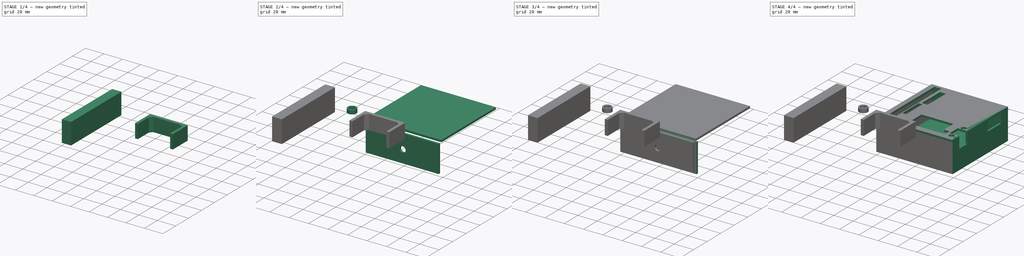
[diagram: build sequence overview — one tinted view per stage of 4, left to right]
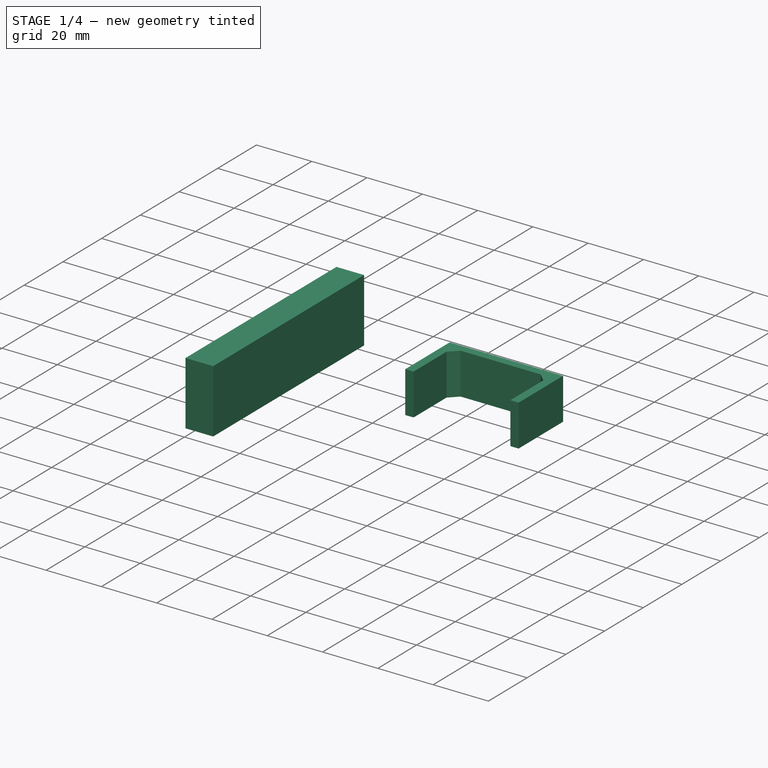
[diagram: stage 1 of 4 — iso view after this stage's code; geometry added in this stage tinted green]
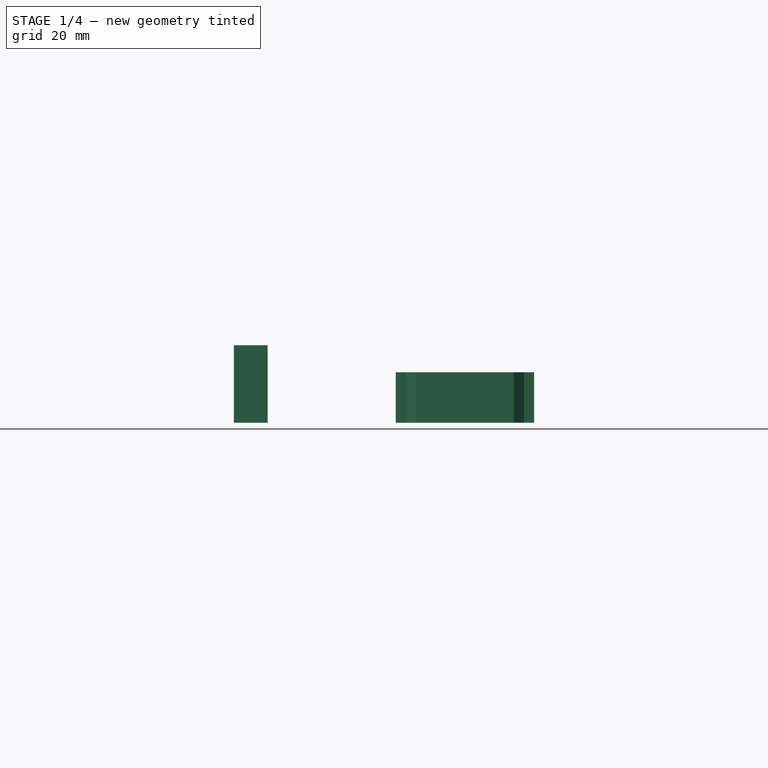
[diagram: stage 1 of 4 — front view after this stage's code; geometry added in this stage tinted green]
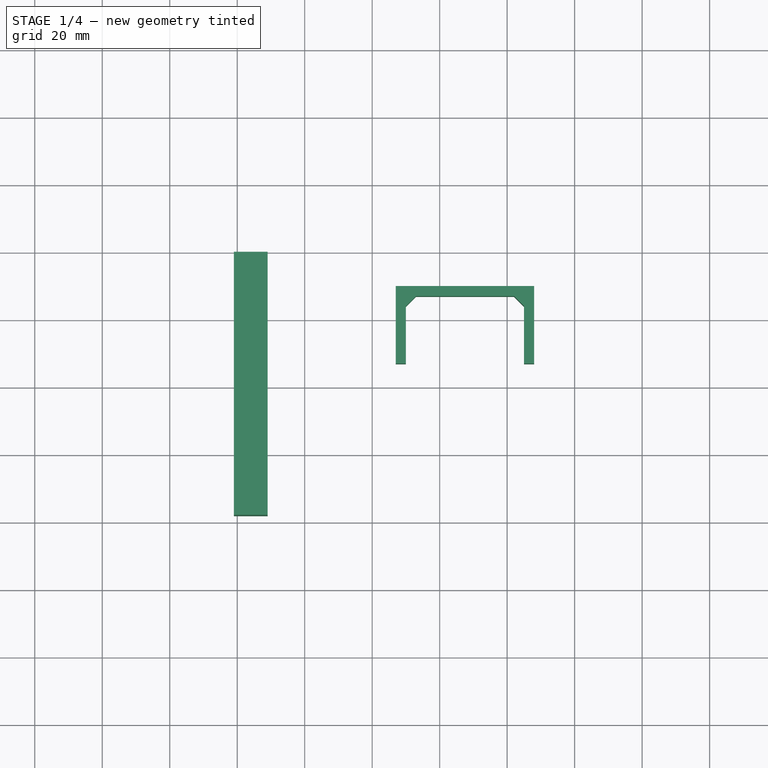
[diagram: stage 1 of 4 — top view after this stage's code; geometry added in this stage tinted green]
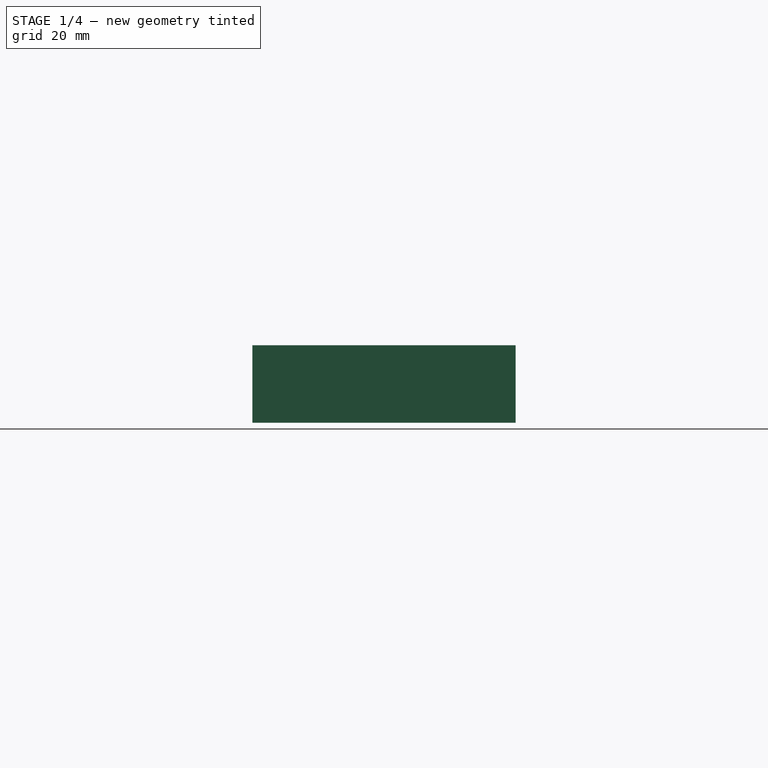
[diagram: stage 1 of 4 — right view after this stage's code; geometry added in this stage tinted green]
FCSTD DOCUMENT  (FreeCAD 1.0R39285 (Git))
Label: pieza1
License: All rights reserved
LicenseURL: https://en.wikipedia.org/wiki/All_rights_reserved
objects: PartDesign::Body×10, Sketcher::SketchObject×9, PartDesign::Pad×9, PartDesign::Boolean×1
note: 57 computed .brp shape members not serialized (recipe doc carries the construction recipe); baked Part::Feature solids carry a one-line shape summary decoded from their .brp

FEATURE [PartDesign::Body] Body009  label="Adaptador"
  AllowCompound = false
  Group = -> [Sketch008,Pad008]
  Origin = -> Origin009
  Tip = -> Pad008
FEATURE [Sketcher::SketchObject] Sketch009
  ArcFitTolerance = 1e-06
  AttachmentSupport = -> [XZ_Plane010]
  FullyConstrained = false
  MakeInternals = false
  MapMode = 5
  Placement = pos=(0,0,0) rot=(1,0,0;1.5708rad)
  sketch-geometry (4):
    g0: LineSegment StartX=-41.0001 StartY=0 StartZ=0 EndX=-31.0001 EndY=0 EndZ=0
    g1: LineSegment StartX=-31.0001 StartY=0 StartZ=0 EndX=-31.0001 EndY=23 EndZ=0
    g2: LineSegment StartX=-31.0001 StartY=23 StartZ=0 EndX=-41.0001 EndY=23 EndZ=0
    g3: LineSegment StartX=-41.0001 StartY=23 StartZ=0 EndX=-41.0001 EndY=0 EndZ=0
  constraints (10):
    c: Coincident(g0,g1)
    c: Coincident(g1,g2)
    c: Coincident(g2,g3)
    c: Coincident(g3,g0)
    c: Horizontal(g0)
    c: Horizontal(g2)
    c: Vertical(g1)
    c: Vertical(g3)
    c: Distance(g1,g3) = 10
    c: Distance(g0,g2) = 23
FEATURE [PartDesign::Pad] Pad009
  Direction = (0,-1,2e-16)
  Length = 78
  Length2 = 10
  Placement = pos=(0,0,0) rot=(1,0,0;1.5708rad)
  Profile = -> Sketch009
  ReferenceAxis = -> Sketch009 [N_Axis]
  Refine = true
  Suppressed = false
  Type = 0
FEATURE [PartDesign::Body] Body010  label="Soporte 1"
  AllowCompound = false
  Group = -> [Sketch009,Pad009]
  Origin = -> Origin010
  Placement = pos=(-50,0,0) rot=(0,1,0;1.5708rad)
  Tip = -> Pad009
FEATURE [Sketcher::SketchObject] Sketch010
  ArcFitTolerance = 1e-06
  AttachmentSupport = -> [XY_Plane011]
  FullyConstrained = false
  MakeInternals = false
  MapMode = 5
  sketch-geometry (10):
    g0: LineSegment StartX=10 StartY=-33 StartZ=0 EndX=10 EndY=-16 EndZ=0
    g1: LineSegment StartX=45.0001 StartY=-33 StartZ=0 EndX=45.0001 EndY=-16 EndZ=0
    g2: LineSegment StartX=10 StartY=-16 StartZ=0 EndX=13 EndY=-13 EndZ=0
    g3: LineSegment StartX=45.0001 StartY=-16 StartZ=0 EndX=42 EndY=-13 EndZ=0
    g4: LineSegment StartX=42 StartY=-13 StartZ=0 EndX=13 EndY=-13 EndZ=0
    g5: LineSegment StartX=48.0001 StartY=-33 StartZ=0 EndX=48.0001 EndY=-10 EndZ=0
    g6: LineSegment StartX=7 StartY=-33 StartZ=0 EndX=7 EndY=-10 EndZ=0
    g7: LineSegment StartX=7 StartY=-10 StartZ=0 EndX=48.0001 EndY=-10 EndZ=0
    g8: LineSegment StartX=7 StartY=-33 StartZ=0 EndX=10 EndY=-33 EndZ=0
    g9: LineSegment StartX=45.0001 StartY=-33 StartZ=0 EndX=48.0001 EndY=-33 EndZ=0
  constraints (18):
    c: Vertical(g0)
    c: Vertical(g1)
    c: Coincident(g2,g0)
    c: Coincident(g3,g1)
    c: Coincident(g4,g3)
    c: Coincident(g4,g2)
    c: Horizontal(g4)
    c: Vertical(g5)
    c: Vertical(g6)
    c: Coincident(g7,g6)
    c: Coincident(g7,g5)
    c: Horizontal(g7)
    c: Coincident(g8,g6)
    c: Coincident(g8,g0)
    c: Horizontal(g8)
    c: Coincident(g9,g1)
    c: Coincident(g9,g5)
    c: Horizontal(g9)
FEATURE [PartDesign::Pad] Pad010
  Direction = (0,0,1)
  Length = 15
  Length2 = 10
  Profile = -> Sketch010
  ReferenceAxis = -> Sketch010 [N_Axis]
  Refine = true
  Suppressed = false
  Type = 0
FEATURE [PartDesign::Body] Body011  label="Soporte 2"
  AllowCompound = false
  Group = -> [Sketch010,Pad010]
  Origin = -> Origin011
  Tip = -> Pad010
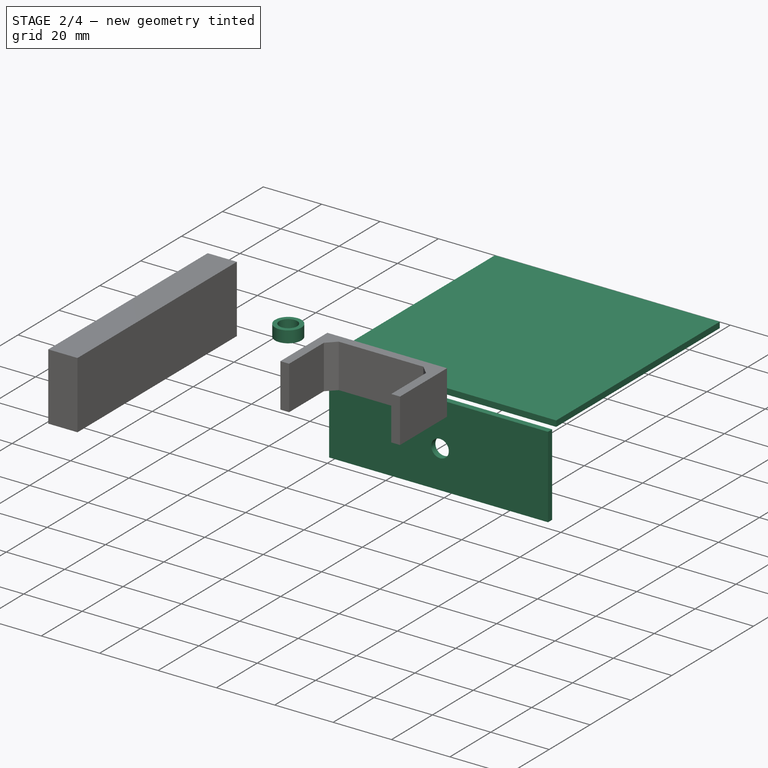
[diagram: stage 2 of 4 — iso view after this stage's code; geometry added in this stage tinted green]
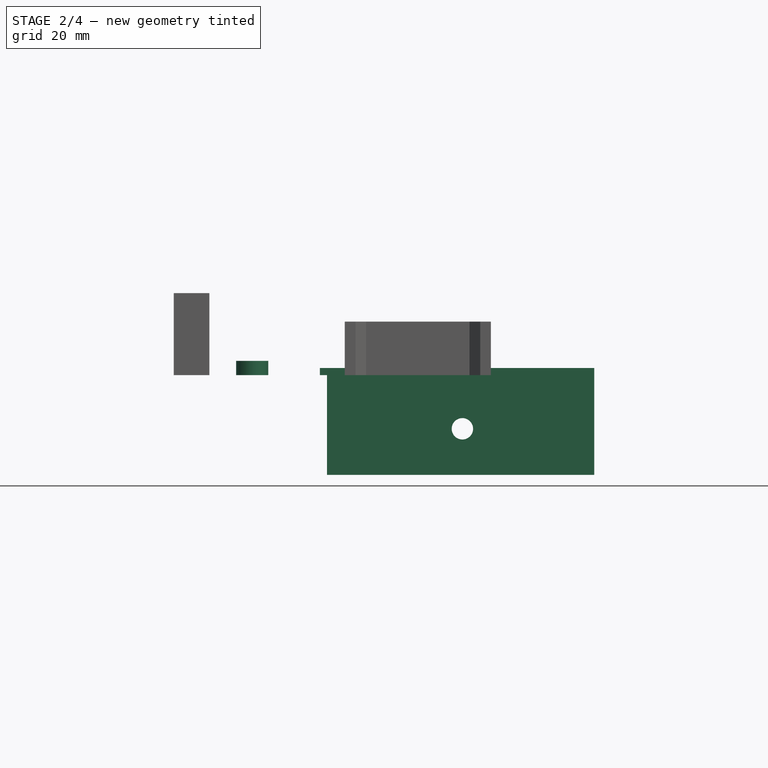
[diagram: stage 2 of 4 — front view after this stage's code; geometry added in this stage tinted green]
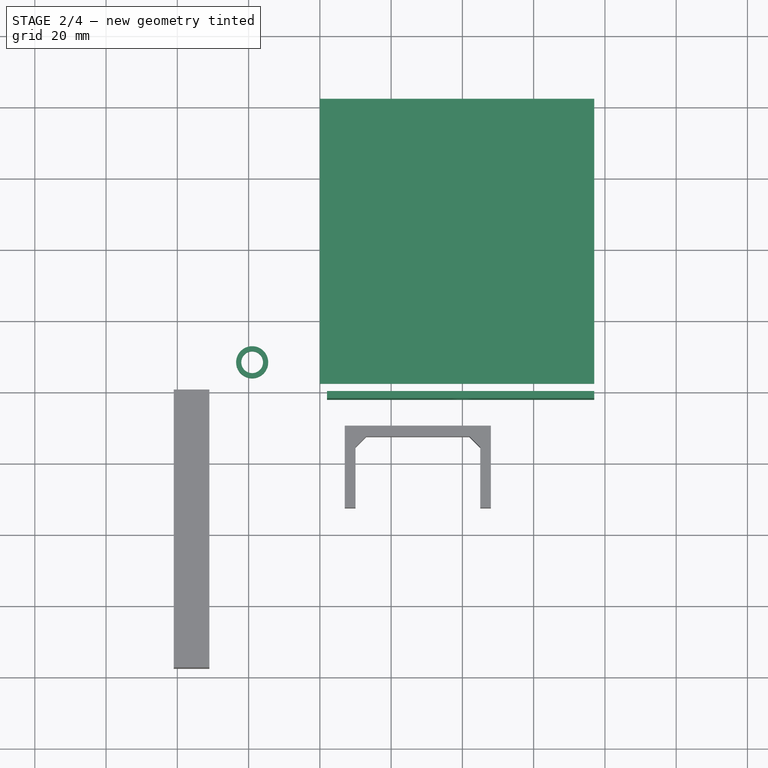
[diagram: stage 2 of 4 — top view after this stage's code; geometry added in this stage tinted green]
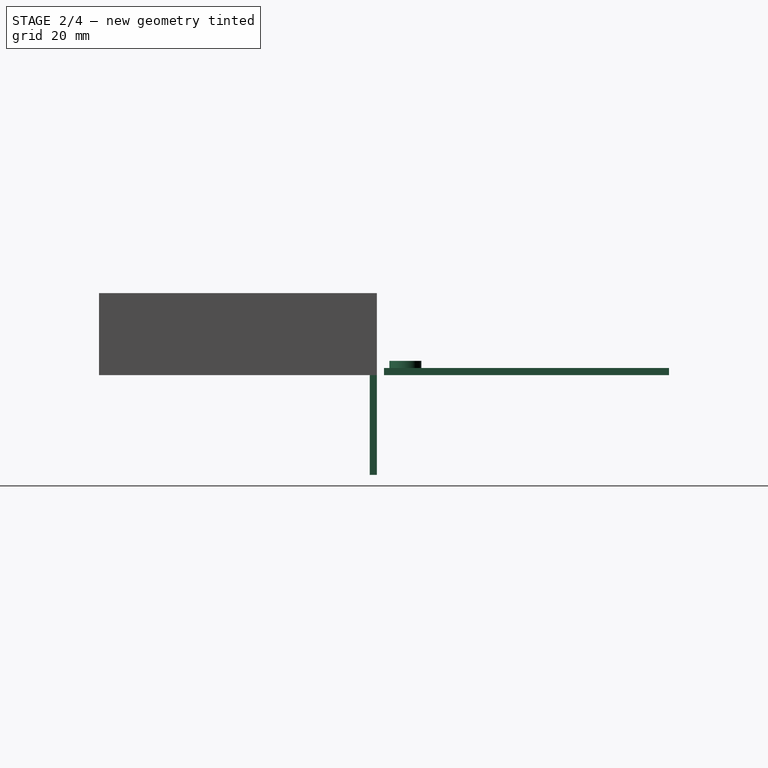
[diagram: stage 2 of 4 — right view after this stage's code; geometry added in this stage tinted green]
FEATURE [PartDesign::Body] Body004  label="Pared 4"
  AllowCompound = false
  Group = -> [Sketch004,Pad004]
  Origin = -> Origin004
  Placement = pos=(77,0,0) rot=(0,0,1;0rad)
  Tip = -> Pad004
FEATURE [Sketcher::SketchObject] Sketch006
  ArcFitTolerance = 1e-06
  AttachmentSupport = -> [XY_Plane006]
  FullyConstrained = false
  MakeInternals = false
  MapMode = 5
  sketch-geometry (4):
    g0: LineSegment StartX=77 StartY=82 StartZ=0 EndX=0 EndY=82 EndZ=0
    g1: LineSegment StartX=0 StartY=82 StartZ=0 EndX=0 EndY=2 EndZ=0
    g2: LineSegment StartX=77 StartY=2 StartZ=0 EndX=77 EndY=82 EndZ=0
    g3: LineSegment StartX=0 StartY=2 StartZ=0 EndX=77 EndY=2 EndZ=0
  constraints (3):
    c: Coincident(g3,g1)
    c: Coincident(g3,g2)
    c: Horizontal(g3)
FEATURE [PartDesign::Pad] Pad006
  Direction = (0,0,1)
  Length = 2
  Length2 = 10
  Profile = -> Sketch006
  ReferenceAxis = -> Sketch006 [N_Axis]
  Refine = true
  Suppressed = false
  Type = 0
FEATURE [PartDesign::Body] Body006  label="Pared 6"
  AllowCompound = false
  Group = -> [Sketch006,Pad006]
  Origin = -> Origin006
  Placement = pos=(0,0,-30) rot=(0,0,1;0rad)
  Tip = -> Pad006
FEATURE [Sketcher::SketchObject] Sketch007
  ArcFitTolerance = 1e-06
  AttachmentSupport = -> [XZ_Plane007]
  FullyConstrained = false
  MakeInternals = false
  MapMode = 5
  Placement = pos=(0,0,0) rot=(1,0,0;1.5708rad)
  sketch-geometry (5):
    g0: LineSegment StartX=2 StartY=0 StartZ=0 EndX=2 EndY=-28 EndZ=0
    g1: LineSegment StartX=2 StartY=-28 StartZ=0 EndX=77 EndY=-28 EndZ=0
    g2: LineSegment StartX=77 StartY=-28 StartZ=0 EndX=77 EndY=0 EndZ=0
    g3: LineSegment StartX=77 StartY=0 StartZ=0 EndX=2 EndY=0 EndZ=0
    g4: Circle CenterX=40 CenterY=-15.0719 CenterZ=0 NormalX=0 NormalY=0 NormalZ=1 AngleXU=0 Radius=3
  constraints (10):
    c: Coincident(g0,g1)
    c: Coincident(g1,g2)
    c: Coincident(g2,g3)
    c: Coincident(g3,g0)
    c: Vertical(g0)
    c: Vertical(g2)
    c: Horizontal(g1)
    c: Horizontal(g3)
    c: PointOnObject(g0,g-1)
    c: Diameter(g4) = 6
FEATURE [PartDesign::Pad] Pad007
  Direction = (0,-1,2e-16)
  Length = 2
  Length2 = 10
  Placement = pos=(0,0,0) rot=(1,0,0;1.5708rad)
  Profile = -> Sketch007
  ReferenceAxis = -> Sketch007 [N_Axis]
  Refine = true
  Suppressed = false
  Type = 0
FEATURE [PartDesign::Body] Body008  label="Base"
  AllowCompound = false
  Group = -> [Boolean]
  Origin = -> Origin008
  Tip = -> Boolean
FEATURE [Sketcher::SketchObject] Sketch008
  ArcFitTolerance = 1e-06
  AttachmentSupport = -> [XY_Plane009]
  FullyConstrained = false
  MakeInternals = false
  MapMode = 5
  sketch-geometry (2):
    g0: Circle CenterX=-18.9996 CenterY=7.99991 CenterZ=0 NormalX=0 NormalY=0 NormalZ=1 AngleXU=0 Radius=3.05
    g1: Circle CenterX=-18.9996 CenterY=7.99991 CenterZ=0 NormalX=0 NormalY=0 NormalZ=1 AngleXU=0 Radius=4.5
  constraints (2):
    c: Diameter(g0) = 6.1
    c: Diameter(g1) = 9
FEATURE [PartDesign::Pad] Pad008
  Direction = (0,0,1)
  Length = 4
  Length2 = 10
  Profile = -> Sketch008
  ReferenceAxis = -> Sketch008 [N_Axis]
  Refine = true
  Suppressed = false
  Type = 0
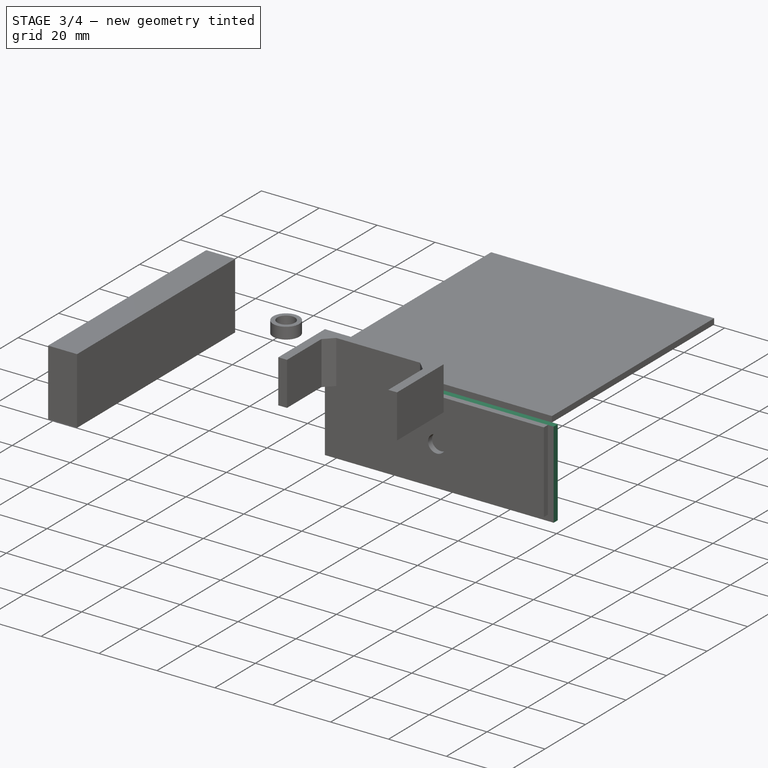
[diagram: stage 3 of 4 — iso view after this stage's code; geometry added in this stage tinted green]
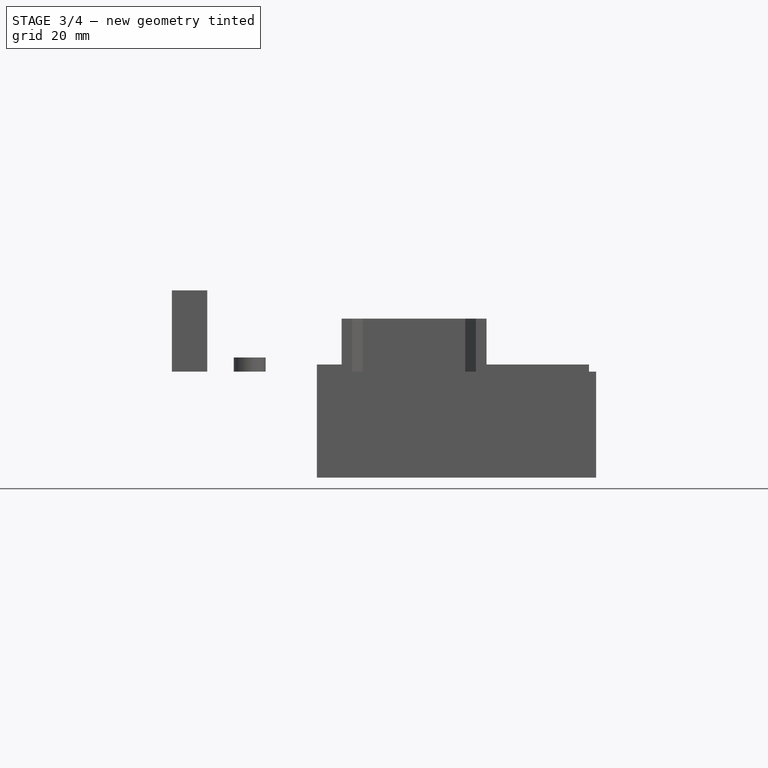
[diagram: stage 3 of 4 — front view after this stage's code; geometry added in this stage tinted green]
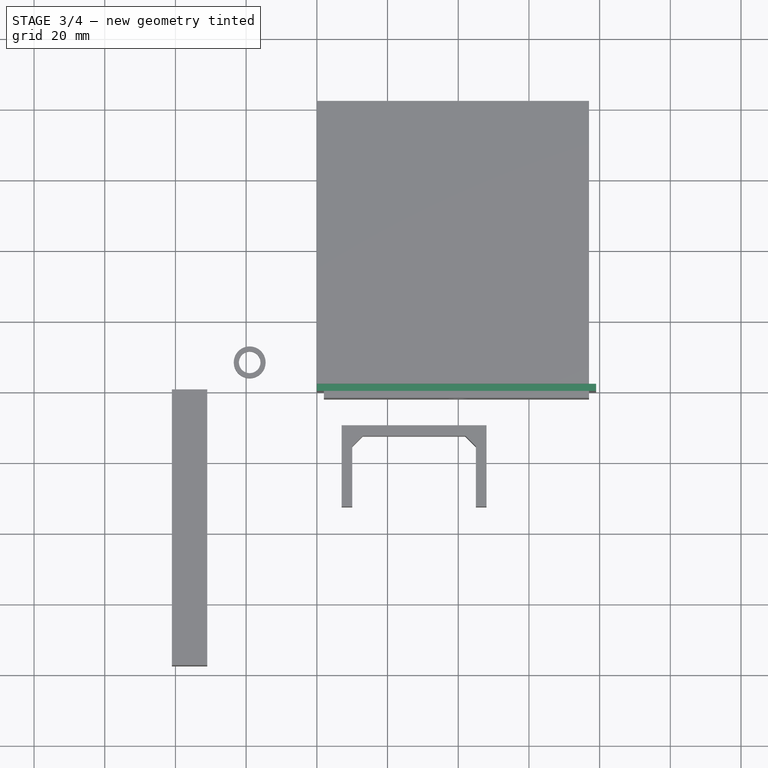
[diagram: stage 3 of 4 — top view after this stage's code; geometry added in this stage tinted green]
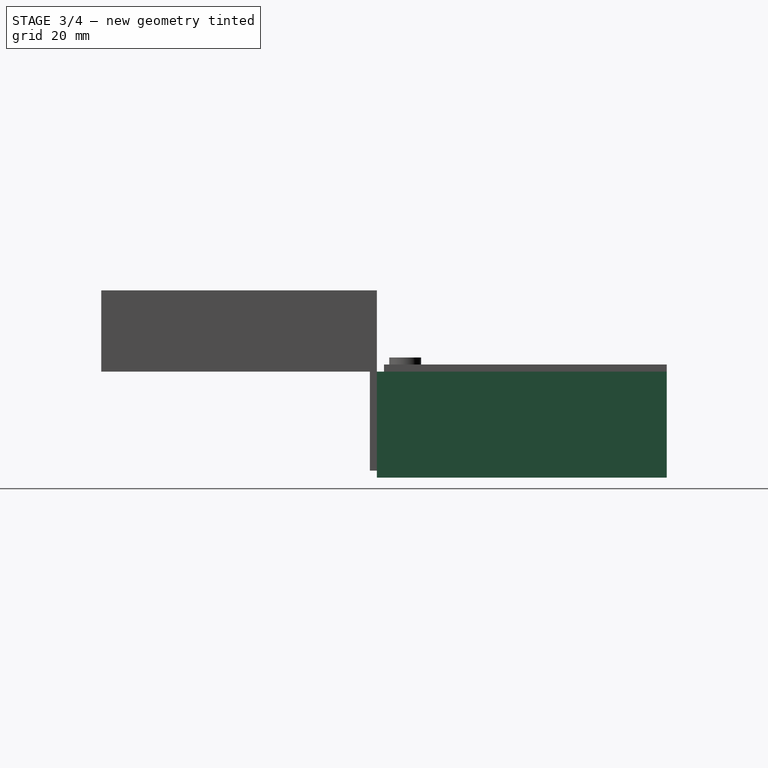
[diagram: stage 3 of 4 — right view after this stage's code; geometry added in this stage tinted green]
FEATURE [PartDesign::Body] Body  label="Frontal"
  AllowCompound = false
  Group = -> [Sketch,Pad]
  Origin = -> Origin
  Tip = -> Pad
FEATURE [Sketcher::SketchObject] Sketch001
  ArcFitTolerance = 1e-06
  AttachmentSupport = -> [XZ_Plane001]
  FullyConstrained = false
  MakeInternals = false
  MapMode = 5
  Placement = pos=(0,0,0) rot=(1,0,0;1.5708rad)
  sketch-geometry (4):
    g0: LineSegment StartX=0 StartY=0 StartZ=0 EndX=0 EndY=-30 EndZ=0
    g1: LineSegment StartX=0 StartY=-30 StartZ=0 EndX=79 EndY=-30 EndZ=0
    g2: LineSegment StartX=79 StartY=-30 StartZ=0 EndX=79 EndY=0 EndZ=0
    g3: LineSegment StartX=79 StartY=0 StartZ=0 EndX=0 EndY=0 EndZ=0
  constraints (10):
    c: Coincident(g0,g1)
    c: Coincident(g1,g2)
    c: Coincident(g2,g3)
    c: Coincident(g3,g0)
    c: Vertical(g0)
    c: Vertical(g2)
    c: Horizontal(g1)
    c: Horizontal(g3)
    c: Distance(g1,g3) = 30
    c: Coincident(g0,g-1)
FEATURE [PartDesign::Pad] Pad001
  Direction = (0,-1,2e-16)
  Length = 2
  Length2 = 10
  Placement = pos=(0,0,0) rot=(1,0,0;1.5708rad)
  Profile = -> Sketch001
  ReferenceAxis = -> Sketch001 [N_Axis]
  Refine = true
  Reversed = true
  Suppressed = false
  Type = 0
FEATURE [PartDesign::Body] Body001  label="Pared 1"
  AllowCompound = false
  Group = -> [Sketch001,Pad001]
  Origin = -> Origin001
  Tip = -> Pad001
FEATURE [Sketcher::SketchObject] Sketch002
  ArcFitTolerance = 1e-06
  AttachmentSupport = -> [YZ_Plane002]
  FullyConstrained = false
  MakeInternals = false
  MapMode = 5
  Placement = pos=(0,0,0) rot=(0.57735,0.57735,0.57735;2.0944rad)
  sketch-geometry (4):
    g0: LineSegment StartX=1.9997 StartY=0 StartZ=0 EndX=1.9997 EndY=-30 EndZ=0
    g1: LineSegment StartX=1.9997 StartY=-30 StartZ=0 EndX=82 EndY=-30 EndZ=0
    g2: LineSegment StartX=82 StartY=-30 StartZ=0 EndX=82 EndY=0 EndZ=0
    g3: LineSegment StartX=82 StartY=0 StartZ=0 EndX=1.9997 EndY=0 EndZ=0
  constraints (10):
    c: Coincident(g0,g1)
    c: Coincident(g1,g2)
    c: Coincident(g2,g3)
    c: Coincident(g3,g0)
    c: Vertical(g0)
    c: Vertical(g2)
    c: Horizontal(g1)
    c: Horizontal(g3)
    c: Distance(g1,g3) = 30
    c: PointOnObject(g0,g-1)
FEATURE [PartDesign::Pad] Pad002
  Direction = (1,0,0)
  Length = 2
  Length2 = 10
  Placement = pos=(0,0,0) rot=(1,1,1;2.0944rad)
  Profile = -> Sketch002
  ReferenceAxis = -> Sketch002 [N_Axis]
  Refine = true
  Suppressed = false
  Type = 0
FEATURE [PartDesign::Body] Body002  label="Pared 2"
  AllowCompound = false
  Group = -> [Sketch002,Pad002]
  Origin = -> Origin002
  Tip = -> Pad002
FEATURE [Sketcher::SketchObject] Sketch004
  ArcFitTolerance = 1e-06
  AttachmentSupport = -> [YZ_Plane004]
  FullyConstrained = false
  MakeInternals = false
  MapMode = 5
  Placement = pos=(0,0,0) rot=(0.57735,0.57735,0.57735;2.0944rad)
  sketch-geometry (12):
    g0: LineSegment StartX=82 StartY=-30 StartZ=0 EndX=82 EndY=0 EndZ=0
    g1: LineSegment StartX=82 StartY=0 StartZ=0 EndX=72 EndY=0 EndZ=0
    g2: LineSegment StartX=72 StartY=0 StartZ=0 EndX=72 EndY=-10 EndZ=0
    g3: LineSegment StartX=72 StartY=-10 StartZ=0 EndX=52 EndY=-10 EndZ=0
    g4: LineSegment StartX=52 StartY=-10 StartZ=0 EndX=52 EndY=7e-06 EndZ=0
    g5: LineSegment StartX=52 StartY=7e-06 StartZ=0 EndX=22 EndY=0 EndZ=0
    g6: LineSegment StartX=22 StartY=0 StartZ=0 EndX=22 EndY=-10 EndZ=0
    g7: LineSegment StartX=22 StartY=-10 StartZ=0 EndX=10 EndY=-10 EndZ=0
    g8: LineSegment StartX=10 StartY=-10 StartZ=0 EndX=10 EndY=0 EndZ=0
    g9: LineSegment StartX=10 StartY=0 StartZ=0 EndX=1.99837 EndY=0 EndZ=0
    g10: LineSegment StartX=1.99837 StartY=0 StartZ=0 EndX=1.99837 EndY=-30 EndZ=0
    g11: LineSegment StartX=1.99837 StartY=-30 StartZ=0 EndX=82 EndY=-30 EndZ=0
  constraints (19):
    c: Vertical(g0)
    c: Distance(g1) = 10
    c: Horizontal(g1)
    c: Coincident(g1,g0)
    c: PointOnObject(g1,g-1)
    c: Coincident(g6,g5)
    c: Vertical(g6)
    c: Coincident(g7,g6)
    c: Horizontal(g7)
    c: Coincident(g8,g7)
    c: PointOnObject(g8,g-1)
    c: Vertical(g8)
    c: Coincident(g9,g8)
    c: PointOnObject(g9,g-1)
    c: Coincident(g10,g9)
    c: Vertical(g10)
    c: Coincident(g11,g10)
    c: Coincident(g11,g0)
    c: Horizontal(g11)
FEATURE [PartDesign::Pad] Pad004
  Direction = (1,0,0)
  Length = 2
  Length2 = 10
  Placement = pos=(0,0,0) rot=(1,1,1;2.0944rad)
  Profile = -> Sketch004
  ReferenceAxis = -> Sketch004 [N_Axis]
  Refine = true
  Suppressed = false
  Type = 0
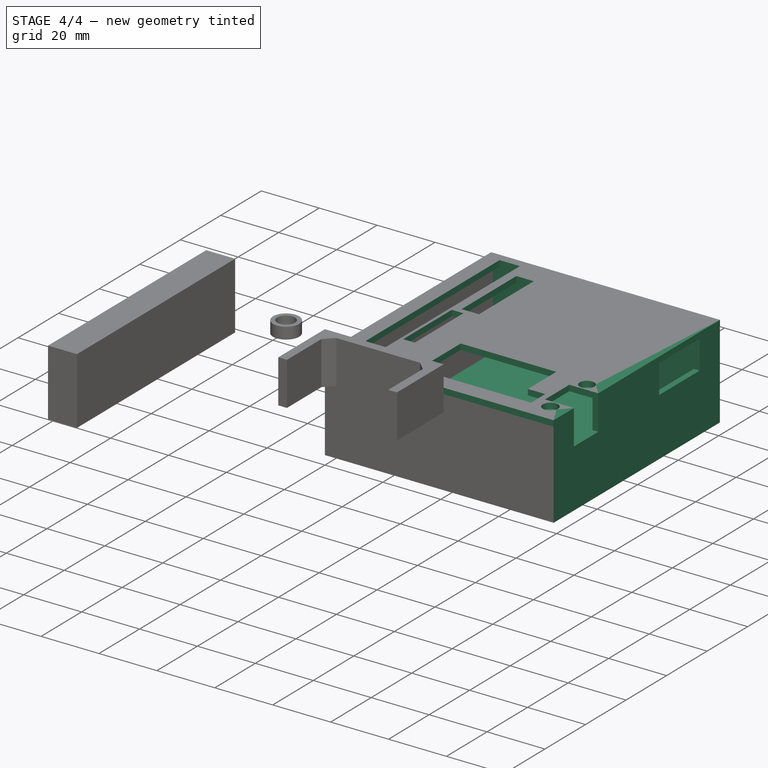
[diagram: stage 4 of 4 — iso view after this stage's code; geometry added in this stage tinted green]
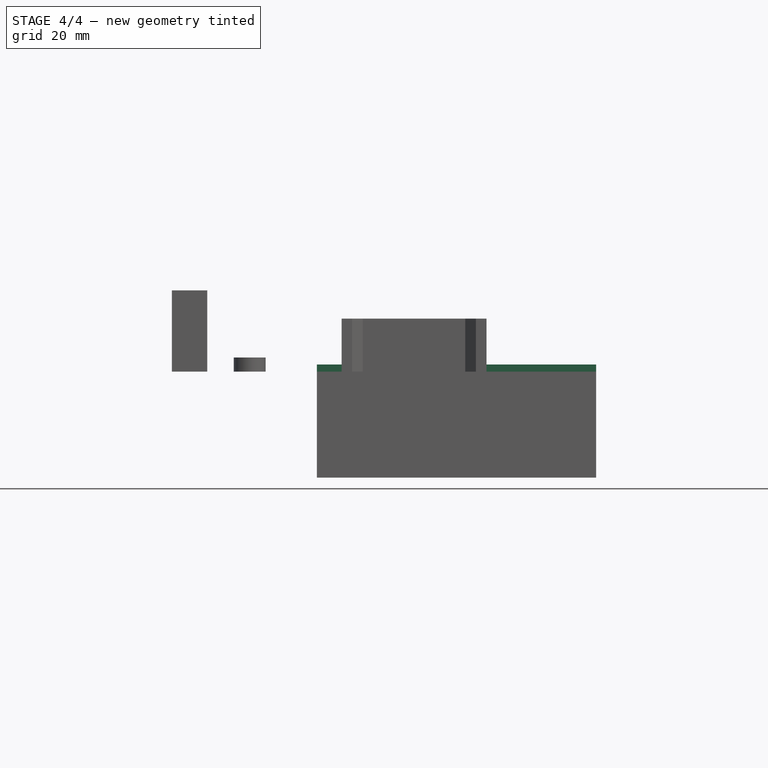
[diagram: stage 4 of 4 — front view after this stage's code; geometry added in this stage tinted green]
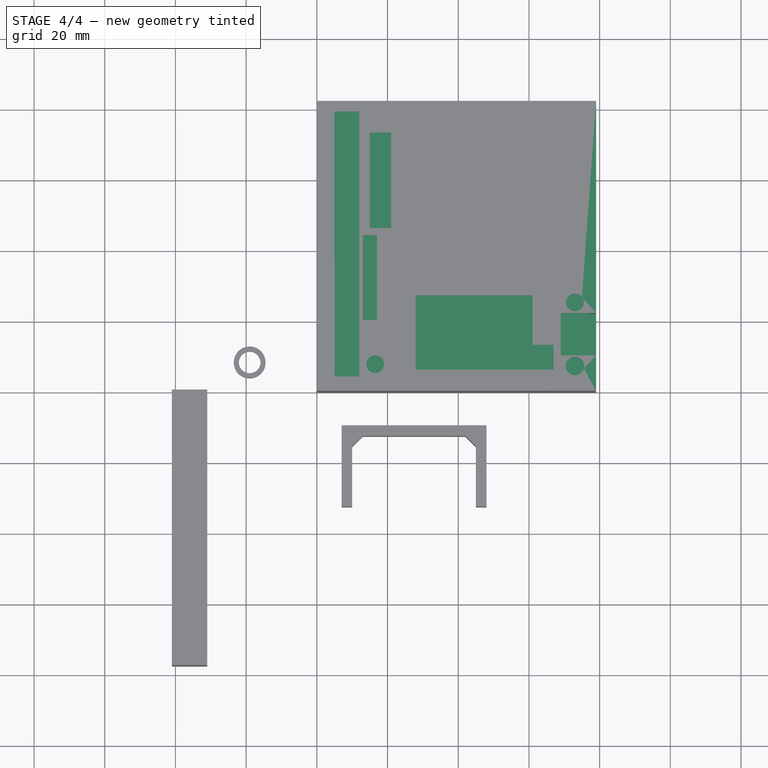
[diagram: stage 4 of 4 — top view after this stage's code; geometry added in this stage tinted green]
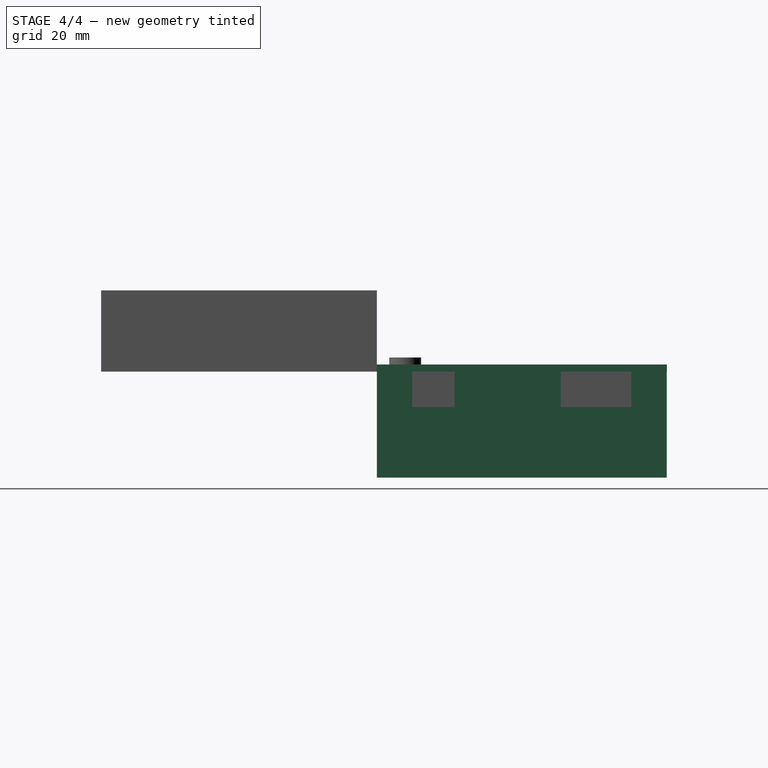
[diagram: stage 4 of 4 — right view after this stage's code; geometry added in this stage tinted green]
FEATURE [Sketcher::SketchObject] Sketch
  ArcFitTolerance = 1e-06
  AttachmentSupport = -> [XY_Plane]
  FullyConstrained = false
  MakeInternals = false
  MapMode = 5
  sketch-geometry (29):
    g0: LineSegment StartX=5 StartY=79.0234 StartZ=0 EndX=5 EndY=4.02337 EndZ=0
    g1: LineSegment StartX=5 StartY=4.02337 StartZ=0 EndX=12 EndY=4.02337 EndZ=0
    g2: LineSegment StartX=12 StartY=4.02337 StartZ=0 EndX=12 EndY=79.0234 EndZ=0
    g3: LineSegment StartX=12 StartY=79.0234 StartZ=0 EndX=5 EndY=79.0234 EndZ=0
    g4: LineSegment StartX=15 StartY=73.0234 StartZ=0 EndX=15 EndY=46.0234 EndZ=0
    g5: LineSegment StartX=15 StartY=46.0234 StartZ=0 EndX=21 EndY=46.0234 EndZ=0
    g6: LineSegment StartX=21 StartY=46.0234 StartZ=0 EndX=21 EndY=73.0234 EndZ=0
    g7: LineSegment StartX=21 StartY=73.0234 StartZ=0 EndX=15 EndY=73.0234 EndZ=0
    g8: Circle CenterX=16.5 CenterY=7.5 CenterZ=0 NormalX=0 NormalY=0 NormalZ=1 AngleXU=0 Radius=2.5
    g9: LineSegment StartX=13 StartY=44.0234 StartZ=0 EndX=13 EndY=20.0234 EndZ=0
    g10: LineSegment StartX=13 StartY=20.0234 StartZ=0 EndX=17 EndY=20.0234 EndZ=0
    g11: LineSegment StartX=17 StartY=20.0234 StartZ=0 EndX=17 EndY=44.0234 EndZ=0
    g12: LineSegment StartX=17 StartY=44.0234 StartZ=0 EndX=13 EndY=44.0234 EndZ=0
    g13: LineSegment StartX=28 StartY=27 StartZ=0 EndX=28 EndY=6 EndZ=0
    g14: LineSegment StartX=61 StartY=27 StartZ=0 EndX=28 EndY=27 EndZ=0
    g15: Circle CenterX=73 CenterY=7 CenterZ=0 NormalX=0 NormalY=0 NormalZ=1 AngleXU=0 Radius=2.61903
    g16: Circle CenterX=73 CenterY=25 CenterZ=0 NormalX=0 NormalY=0 NormalZ=1 AngleXU=0 Radius=2.50656
    g17: LineSegment StartX=61 StartY=27 StartZ=0 EndX=61 EndY=13 EndZ=0
    g18: LineSegment StartX=28 StartY=6 StartZ=0 EndX=67 EndY=6 EndZ=0
    g19: LineSegment StartX=0 StartY=82.0234 StartZ=0 EndX=0 EndY=0 EndZ=0
    g20: LineSegment StartX=79 StartY=22 StartZ=0 EndX=79 EndY=82.0234 EndZ=0
    g21: LineSegment StartX=79 StartY=10 StartZ=0 EndX=79 EndY=0 EndZ=0
    g22: LineSegment StartX=0 StartY=0 StartZ=0 EndX=79 EndY=0 EndZ=0
    g23: LineSegment StartX=0 StartY=82.0234 StartZ=0 EndX=79 EndY=82.0234 EndZ=0
    g24: LineSegment StartX=69 StartY=22 StartZ=0 EndX=69 EndY=10 EndZ=0
    g25: LineSegment StartX=69 StartY=22 StartZ=0 EndX=79 EndY=22 EndZ=0
    g26: LineSegment StartX=69 StartY=10 StartZ=0 EndX=79 EndY=10 EndZ=0
    g27: LineSegment StartX=61 StartY=13 StartZ=0 EndX=67 EndY=13 EndZ=0
    g28: LineSegment StartX=67 StartY=13 StartZ=0 EndX=67 EndY=6 EndZ=0
  constraints (11):
    c: Coincident(g25,g24)
    c: Coincident(g25,g20)
    c: Horizontal(g25)
    c: Coincident(g26,g24)
    c: Coincident(g26,g21)
    c: Horizontal(g26)
    c: Coincident(g27,g17)
    c: Horizontal(g27)
    c: Coincident(g28,g27)
    c: Coincident(g28,g18)
    c: Vertical(g28)
FEATURE [PartDesign::Pad] Pad
  Direction = (0,0,1)
  Length = 2
  Length2 = 10
  Profile = -> Sketch
  ReferenceAxis = -> Sketch [N_Axis]
  Refine = true
  Suppressed = false
  Type = 0
FEATURE [PartDesign::Body] Body007  label="Pared 7"
  AllowCompound = false
  Group = -> [Sketch007,Pad007]
  Origin = -> Origin007
  Placement = pos=(0,82,0) rot=(0,0,1;0rad)
  Tip = -> Pad007
FEATURE [PartDesign::Boolean] Boolean
  Group = -> [Body001,Body004,Body007,Body006,Body002]
  Refine = true
  Suppressed = false
  Type = 0
  UsePlacement = true
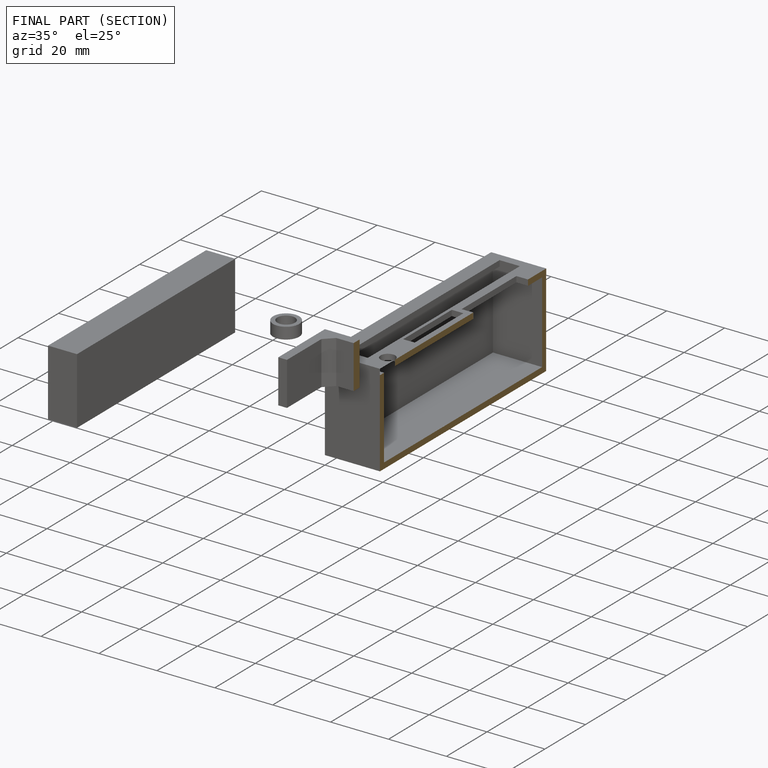
[diagram: finished part — half-section view (interior)]
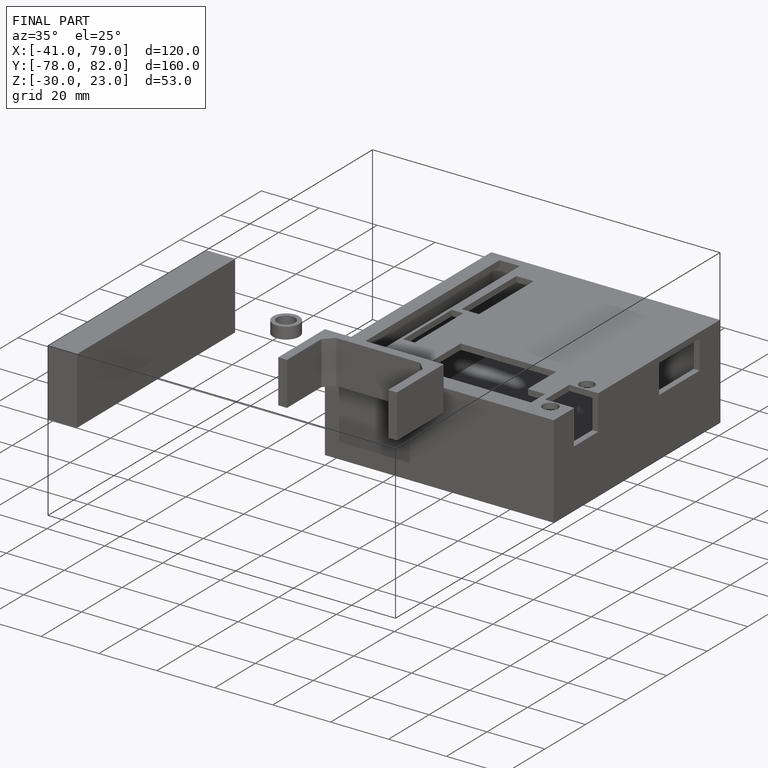
[diagram: finished part — iso view with bounding-box wireframe]
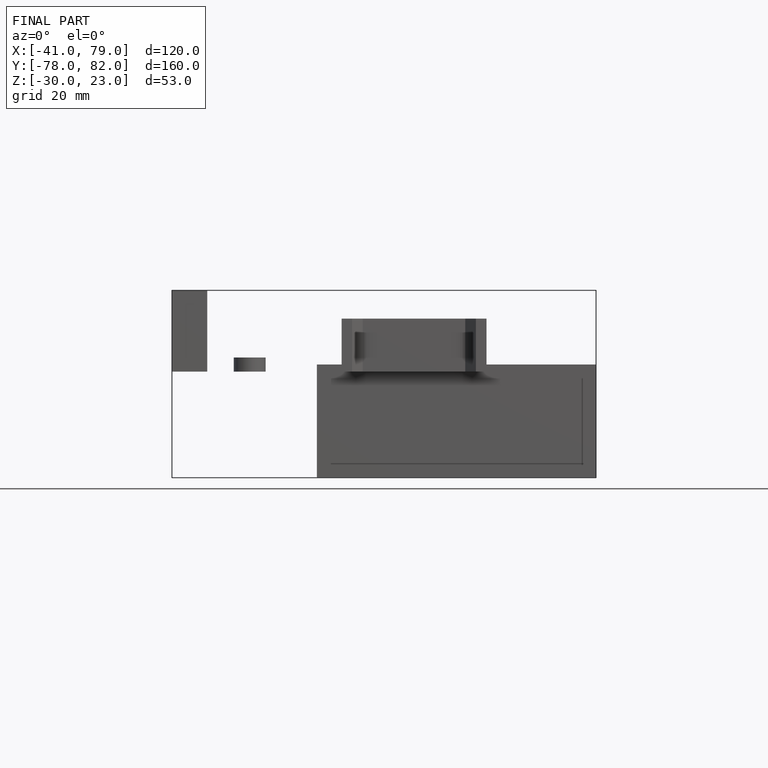
[diagram: finished part — front view with bounding-box wireframe]
